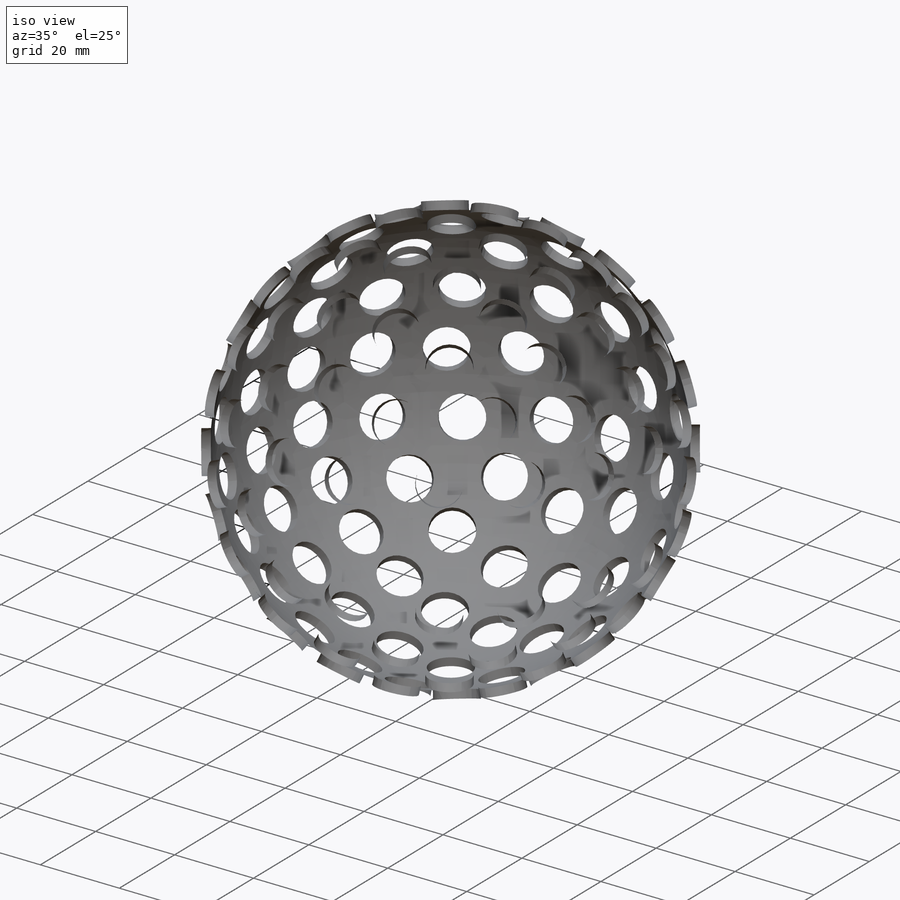
[diagram: iso view]
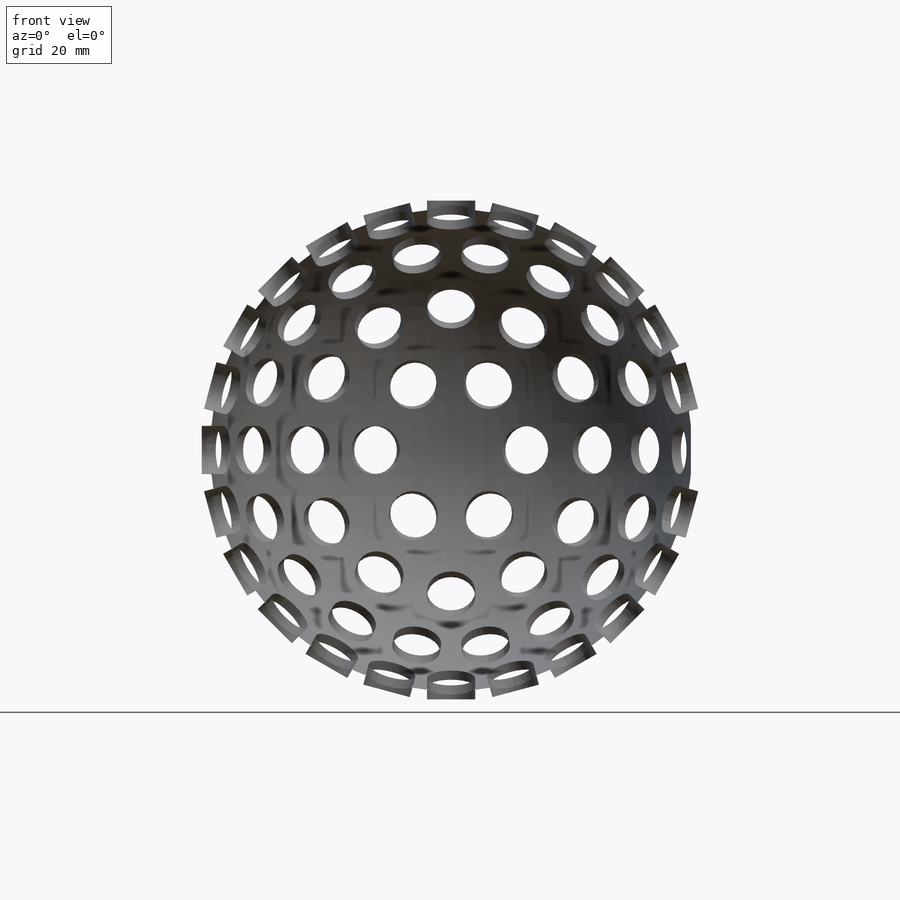
[diagram: front view]
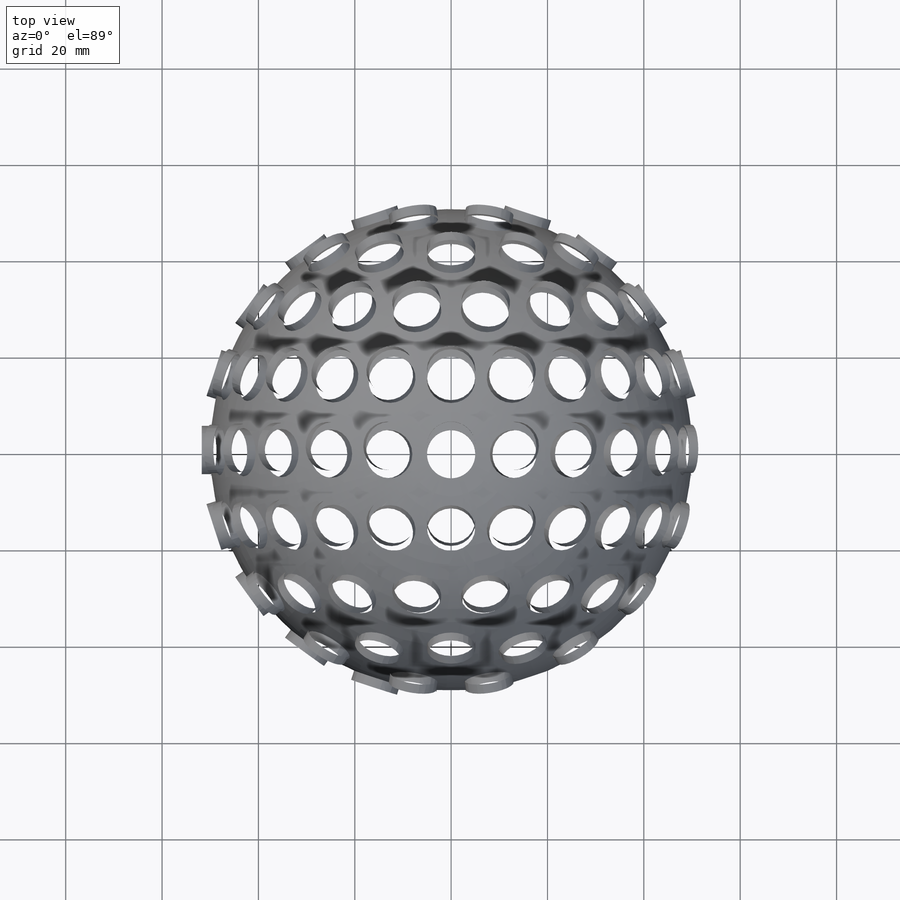
[diagram: top view]
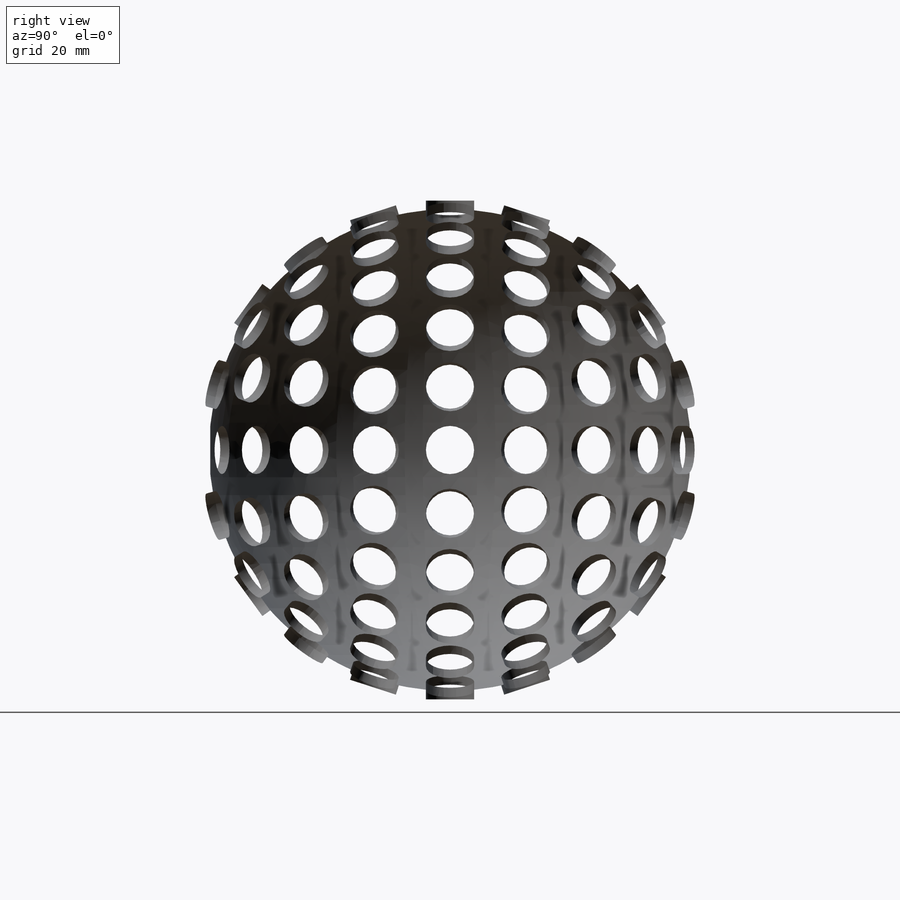
[diagram: right view]
SOLIDWORKS PART (.sldprt)
format: sldprt  version: not decoded by parser v0  size: 856,064 bytes
history: native  units: mm
features: pattern_circular x6, plane x3, sketch x2, material x1, revolve x1, cut_extrude x1, extrude x1, mirror x1 (+8 scaffold rows collapsed)
feature tree (24):
  scaffold x8  (default folders/planes/origin — collapsed)
  material  "Material <nicht festgelegt>"
  plane  "Vorderansicht"
  plane  "Draufsicht"
  plane  "Seitenansicht"
  sketch  "Skizze1"  dims[D2=50.0mm D1=2.0mm]
  revolve  "Rotation1"  Angle=360deg
  sketch  "Skizze2"  dims[D1=10.0mm]
  cut_extrude  "Schnitt-Linear austragen1"  [1 undecoded]
  pattern_circular  "Kreismuster1"  Count=6 Angle=90deg
  extrude  "Achse2"  [1 undecoded]
  pattern_circular  "Kreismuster2"  Count=6 Angle=360deg
  pattern_circular  "Kreismuster3"  Count=12 Angle=360deg
  pattern_circular  "Kreismuster4"  Count=18 Angle=360deg
  pattern_circular  "Kreismuster5"  Count=24 Angle=360deg
  pattern_circular  "Kreismuster6"  Count=24 Angle=360deg
  mirror  "Spiegeln1"
decode coverage: 9 of 12 modeling features carry decoded parameters
note: 2 parameter values undecoded
note: suppression state not decoded; provenance and decode notes live in map.json
